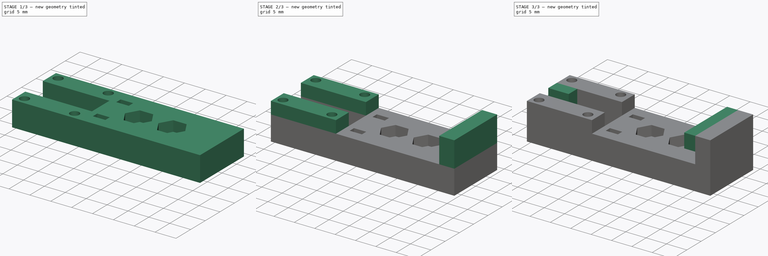
[diagram: build sequence overview — one tinted view per stage of 3, left to right]
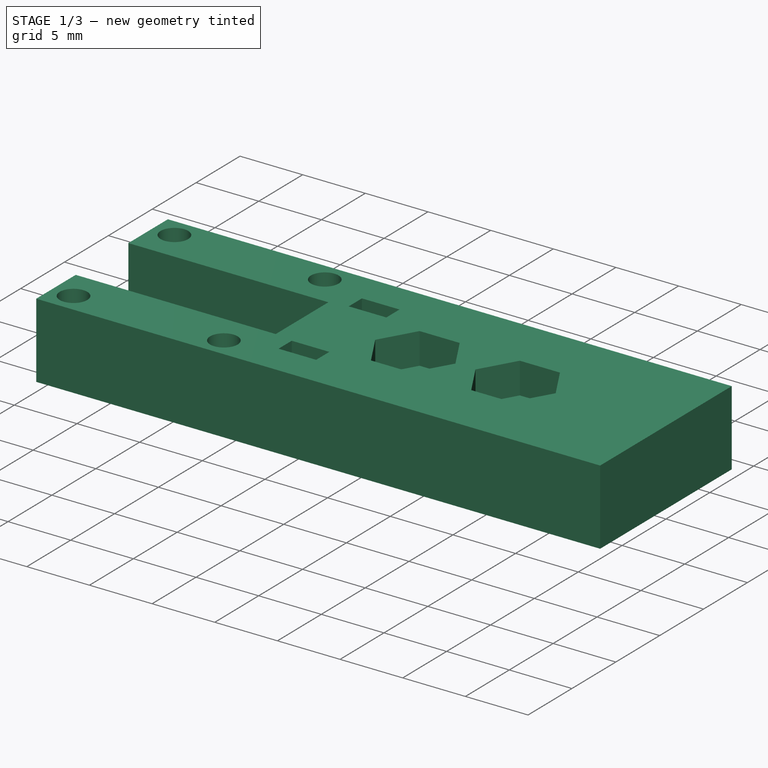
[diagram: stage 1 of 3 — iso view after this stage's code; geometry added in this stage tinted green]
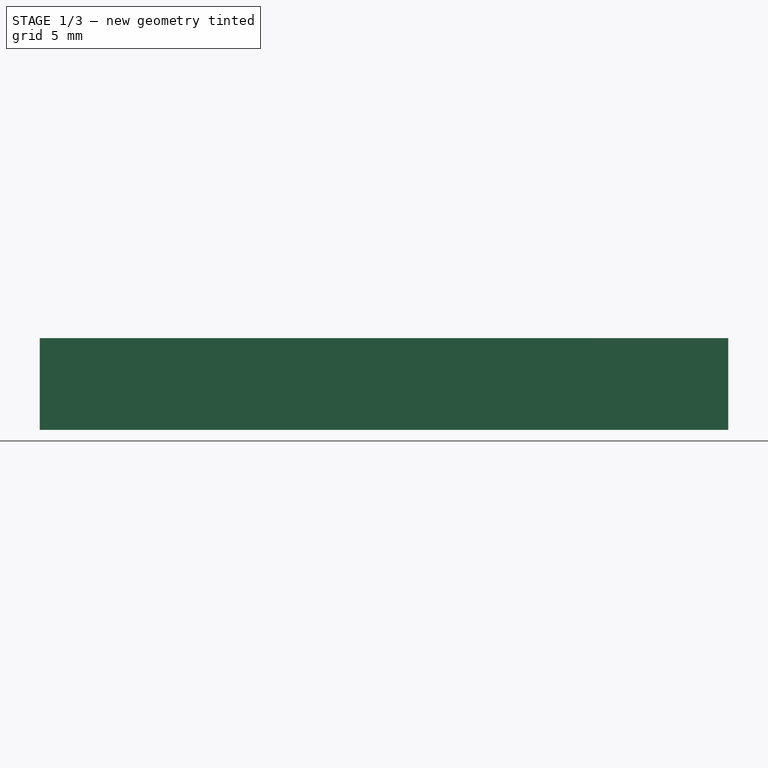
[diagram: stage 1 of 3 — front view after this stage's code; geometry added in this stage tinted green]
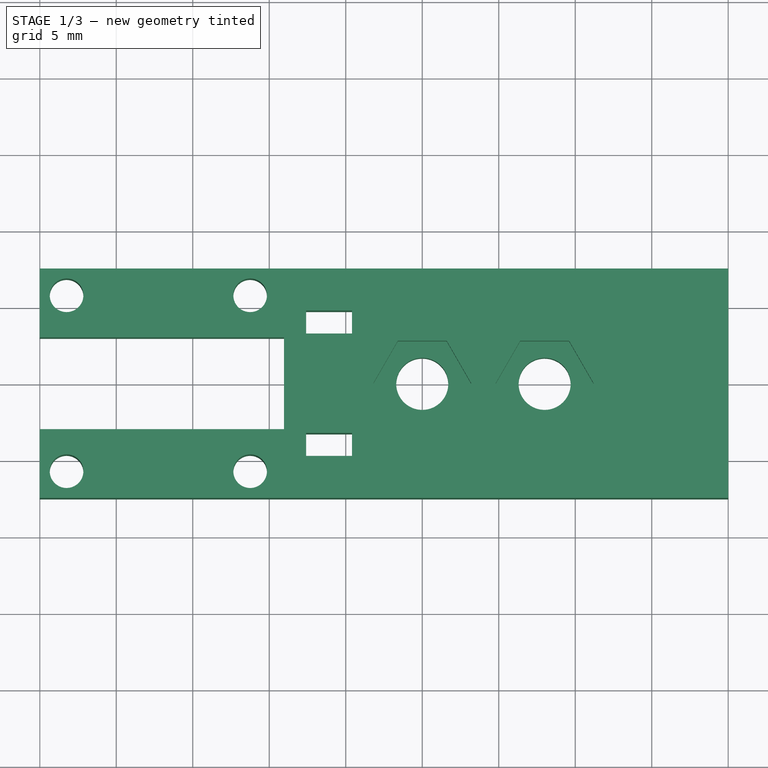
[diagram: stage 1 of 3 — top view after this stage's code; geometry added in this stage tinted green]
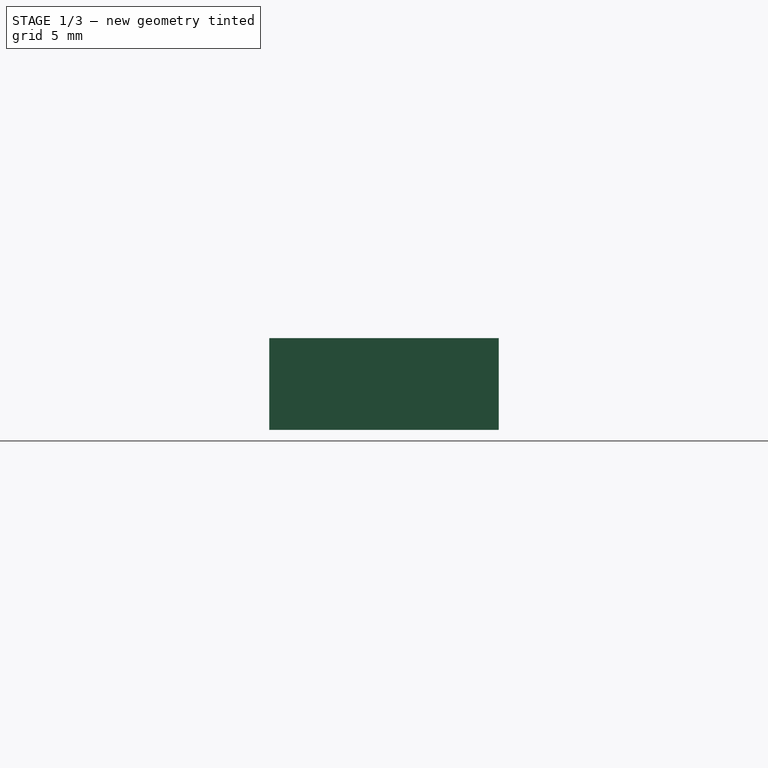
[diagram: stage 1 of 3 — right view after this stage's code; geometry added in this stage tinted green]
FCSTD DOCUMENT  (FreeCAD 0.18.4R)
Label: support_pcb_down_for_chain
License: All rights reserved
LicenseURL: http://en.wikipedia.org/wiki/All_rights_reserved
objects: Sketcher::SketchObject×6, PartDesign::Pad×5, PartDesign::Pocket×1, PartDesign::Body×1
note: 19 computed .brp shape members not serialized (recipe doc carries the construction recipe); baked Part::Feature solids carry a one-line shape summary decoded from their .brp

FEATURE [Sketcher::SketchObject] Sketch
  MapMode = 5
  Support = -> [XY_Plane]
  sketch-geometry (22):
    g0: LineSegment StartX=-20 StartY=7.5 StartZ=0 EndX=25 EndY=7.5 EndZ=0
    g1: LineSegment StartX=25 StartY=7.5 StartZ=0 EndX=25 EndY=-7.5 EndZ=0
    g2: LineSegment StartX=25 StartY=-7.5 StartZ=0 EndX=-20 EndY=-7.5 EndZ=0
    g3: Circle CenterX=5 CenterY=0 CenterZ=0 NormalX=0 NormalY=0 NormalZ=1 AngleXU=0 Radius=1.7
    g4: Circle CenterX=13 CenterY=0 CenterZ=0 NormalX=0 NormalY=0 NormalZ=1 AngleXU=0 Radius=1.7
    g5: LineSegment StartX=-20 StartY=7.5 StartZ=0 EndX=-20 EndY=3 EndZ=0
    g6: LineSegment StartX=-20 StartY=3 StartZ=0 EndX=-4.04 EndY=3 EndZ=0
    g7: LineSegment StartX=-4.04 StartY=3 StartZ=0 EndX=-4.04 EndY=-3 EndZ=0
    g8: LineSegment StartX=-4.04 StartY=-3 StartZ=0 EndX=-20 EndY=-3 EndZ=0
    g9: LineSegment StartX=-20 StartY=-3 StartZ=0 EndX=-20 EndY=-7.5 EndZ=0
    g10: LineSegment StartX=-2.58783 StartY=3.25 StartZ=0 EndX=0.412167 EndY=3.25 EndZ=0
    g11: LineSegment StartX=0.412167 StartY=3.25 StartZ=0 EndX=0.412167 EndY=4.75 EndZ=0
    g12: LineSegment StartX=0.412167 StartY=4.75 StartZ=0 EndX=-2.58783 EndY=4.75 EndZ=0
    g13: LineSegment StartX=-2.58783 StartY=4.75 StartZ=0 EndX=-2.58783 EndY=3.25 EndZ=0
    g14: LineSegment StartX=-2.58783 StartY=-3.25 StartZ=0 EndX=0.412167 EndY=-3.25 EndZ=0
    g15: LineSegment StartX=0.412167 StartY=-3.25 StartZ=0 EndX=0.412167 EndY=-4.75 EndZ=0
    g16: LineSegment StartX=0.412167 StartY=-4.75 StartZ=0 EndX=-2.58783 EndY=-4.75 EndZ=0
    g17: LineSegment StartX=-2.58783 StartY=-4.75 StartZ=0 EndX=-2.58783 EndY=-3.25 EndZ=0
    g18: Circle CenterX=-18.25 CenterY=5.75 CenterZ=0 NormalX=0 NormalY=0 NormalZ=1 AngleXU=0 Radius=1.1
    g19: Circle CenterX=-6.25 CenterY=5.75 CenterZ=0 NormalX=0 NormalY=0 NormalZ=1 AngleXU=0 Radius=1.1
    g20: Circle CenterX=-18.25 CenterY=-5.75 CenterZ=0 NormalX=0 NormalY=0 NormalZ=1 AngleXU=0 Radius=1.1
    g21: Circle CenterX=-6.25 CenterY=-5.75 CenterZ=0 NormalX=0 NormalY=0 NormalZ=1 AngleXU=0 Radius=1.1
  constraints (61):
    c: Coincident(g0,g1)
    c: Coincident(g1,g2)
    c: Horizontal(g0)
    c: Horizontal(g2)
    c: Vertical(g1)
    c: Symmetric(g0,g2,g-1)
    c: DistanceX(g-2,g0) = 25
    c: DistanceX(g-2,g0) = -20
    c: Horizontal(g3,g4)
    c: DistanceX(g-2,g3) = 5
    c: PointOnObject(g3,g-1)
    c: Distance(g3,g4) = 8
    c: Radius(g3) = 1.7
    c: Radius(g4) = 1.7
    c: Coincident(g0,g5)
    c: Vertical(g5)
    c: Coincident(g5,g6)
    c: Horizontal(g6)
    c: Coincident(g6,g7)
    c: Vertical(g7)
    c: Coincident(g7,g8)
    c: Horizontal(g8)
    c: Coincident(g8,g9)
    c: Coincident(g9,g2)
    c: Symmetric(g5,g8,g-1)
    c: DistanceY(g7,g7) = 6
    c: DistanceY(g1,g1) = 15
    c: Coincident(g10,g11)
    c: Coincident(g11,g12)
    c: Coincident(g12,g13)
    c: Coincident(g13,g10)
    c: Horizontal(g10)
    c: Horizontal(g12)
    c: Vertical(g11)
    c: Vertical(g13)
    c: Coincident(g14,g15)
    c: Coincident(g15,g16)
    c: Coincident(g16,g17)
    c: Coincident(g17,g14)
    c: Horizontal(g14)
    c: Horizontal(g16)
    c: Vertical(g15)
    c: Vertical(g17)
    c: Distance(g10,g15) = 8
    c: Vertical(g14,g10)
    c: Symmetric(g10,g14,g-1)
    c: DistanceY(g13,g13) = 1.5
    c: DistanceY(g17,g17) = 1.5
    c: DistanceX(g12,g12) = 3
    c: Horizontal(g21,g20)
    c: Horizontal(g18,g19)
    c: Vertical(g19,g21)
    c: Radius(g18) = 1.1
    c: Radius(g19) = 1.1
    c: Radius(g21) = 1.1
    c: Radius(g20) = 1.1
    c: Symmetric(g18,g20,g-1)
    c: Distance(g18,g0) = 1.75
    c: Distance(g18,g5) = 1.75
    c: Distance(g18,g19) = 12
    c: Distance(g8) = 15.96
FEATURE [PartDesign::Pad] Pad
  Length = 6
  Length2 = 100
  Profile = -> Sketch
  Type = 0
FEATURE [Sketcher::SketchObject] Sketch001
  ExternalGeometry = -> [Pad]
  MapMode = 5
  Placement = pos=(0,0,6) rot=(0,0,1;0rad)
  Support = -> [Pad]
  sketch-geometry (14):
    g0: LineSegment StartX=6.6 StartY=-2.77128 StartZ=0 EndX=8.2 EndY=-4e-16 EndZ=0
    g1: LineSegment StartX=8.2 StartY=-4e-16 StartZ=0 EndX=6.6 EndY=2.77128 EndZ=0
    g2: LineSegment StartX=6.6 StartY=2.77128 StartZ=0 EndX=3.4 EndY=2.77128 EndZ=0
    g3: LineSegment StartX=3.4 StartY=2.77128 StartZ=0 EndX=1.8 EndY=0 EndZ=0
    g4: LineSegment StartX=1.8 StartY=0 StartZ=0 EndX=3.4 EndY=-2.77128 EndZ=0
    g5: LineSegment StartX=3.4 StartY=-2.77128 StartZ=0 EndX=6.6 EndY=-2.77128 EndZ=0
    g6: Circle [constr] CenterX=5 CenterY=0 CenterZ=0 NormalX=0 NormalY=0 NormalZ=1 AngleXU=0 Radius=3.2
    g7: LineSegment StartX=14.6 StartY=-2.77128 StartZ=0 EndX=16.2 EndY=-4e-16 EndZ=0
    g8: LineSegment StartX=16.2 StartY=-4e-16 StartZ=0 EndX=14.6 EndY=2.77128 EndZ=0
    g9: LineSegment StartX=14.6 StartY=2.77128 StartZ=0 EndX=11.4 EndY=2.77128 EndZ=0
    g10: LineSegment StartX=11.4 StartY=2.77128 StartZ=0 EndX=9.8 EndY=0 EndZ=0
    g11: LineSegment StartX=9.8 StartY=0 StartZ=0 EndX=11.4 EndY=-2.77128 EndZ=0
    g12: LineSegment StartX=11.4 StartY=-2.77128 StartZ=0 EndX=14.6 EndY=-2.77128 EndZ=0
    g13: Circle [constr] CenterX=13 CenterY=0 CenterZ=0 NormalX=0 NormalY=0 NormalZ=1 AngleXU=0 Radius=3.2
  constraints (32):
    c: Coincident(g0,g1)
    c: Coincident(g1,g2)
    c: Coincident(g2,g3)
    c: Coincident(g3,g4)
    c: Coincident(g4,g5)
    c: Coincident(g5,g0)
    c: Equal(g0, g1-g5) x5
    c: PointOnObject(g0,g6)
    c: PointOnObject(g1,g6)
    c: PointOnObject(g2,g6)
    c: PointOnObject(g3,g6)
    c: PointOnObject(g4,g6)
    c: PointOnObject(g5,g6)
    c: Coincident(g6,g-3)
    c: Coincident(g7,g8)
    c: Coincident(g8,g9)
    c: Coincident(g9,g10)
    c: Coincident(g10,g11)
    c: Coincident(g11,g12)
    c: Coincident(g12,g7)
    c: Equal(g7, g8-g12) x5
    c: PointOnObject(g7,g13)
    c: PointOnObject(g8,g13)
    c: PointOnObject(g9,g13)
    c: PointOnObject(g10,g13)
    c: PointOnObject(g11,g13)
    c: PointOnObject(g12,g13)
    c: Coincident(g13,g-4)
    c: Radius(g13) = 3.2
    c: Radius(g6) = 3.2
    c: PointOnObject(g3,g-1)
    c: PointOnObject(g10,g-1)
FEATURE [PartDesign::Pocket] Pocket
  BaseFeature = -> Pad
  Length = 2.5
  Length2 = 100
  Profile = -> Sketch001
  Type = 0
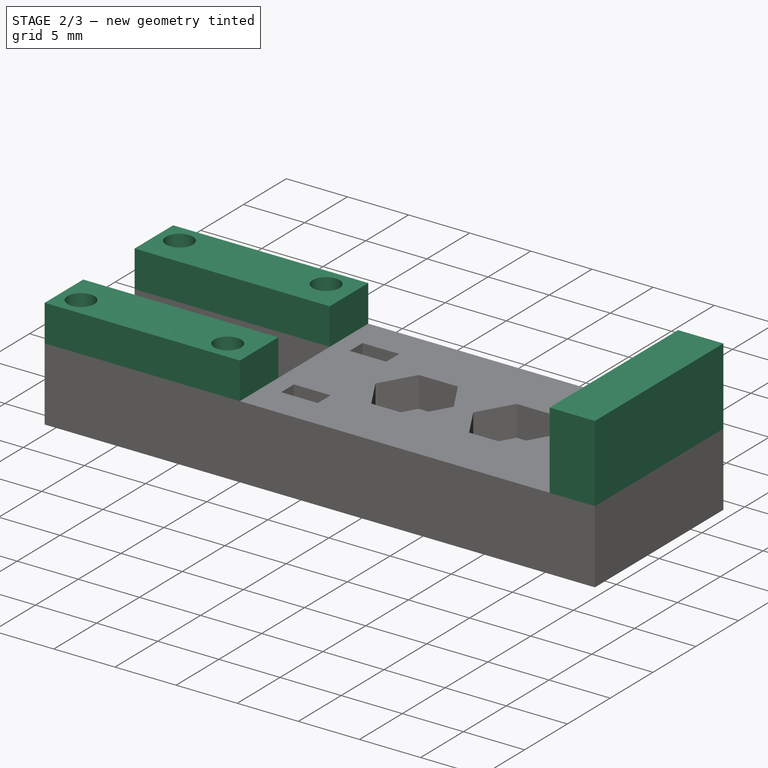
[diagram: stage 2 of 3 — iso view after this stage's code; geometry added in this stage tinted green]
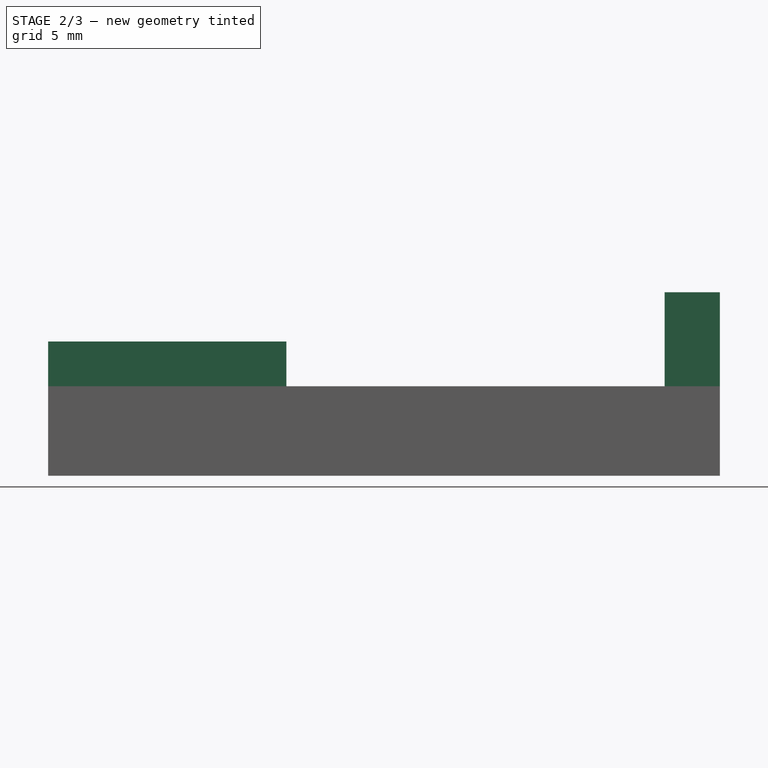
[diagram: stage 2 of 3 — front view after this stage's code; geometry added in this stage tinted green]
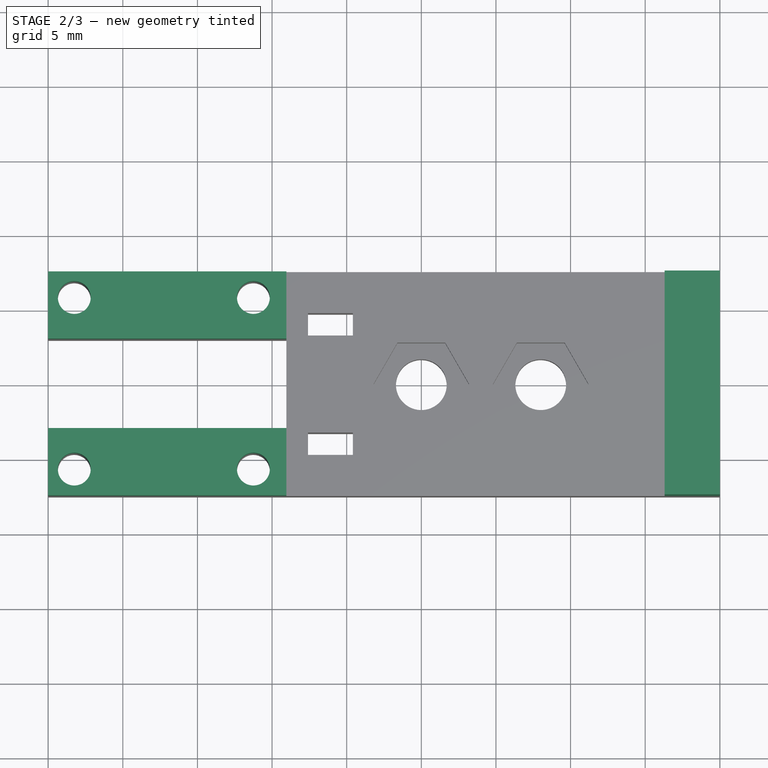
[diagram: stage 2 of 3 — top view after this stage's code; geometry added in this stage tinted green]
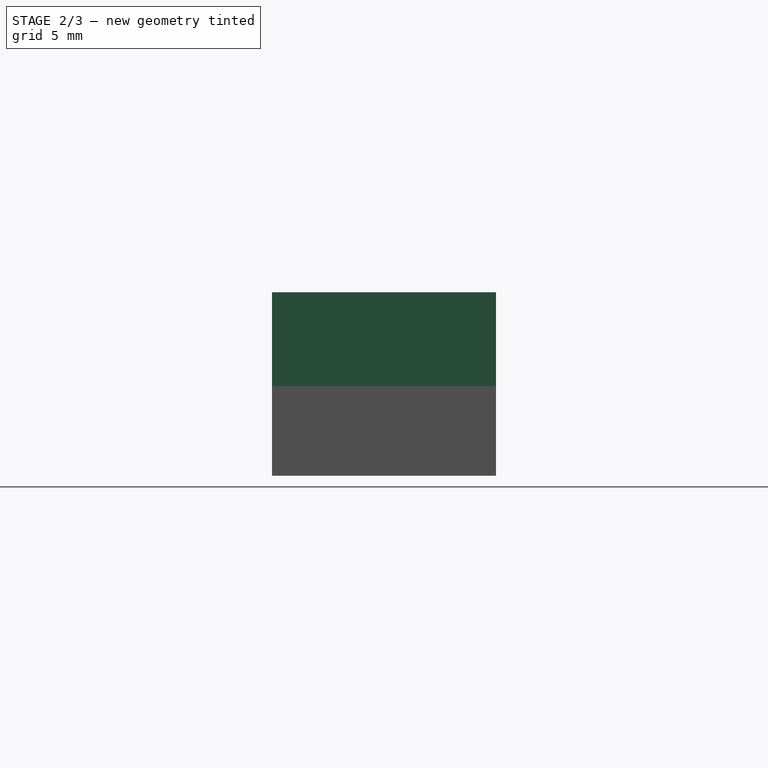
[diagram: stage 2 of 3 — right view after this stage's code; geometry added in this stage tinted green]
FEATURE [Sketcher::SketchObject] Sketch002
  ExternalGeometry = -> [Pocket]
  MapMode = 5
  Placement = pos=(0,0,6) rot=(0,0,1;0rad)
  Support = -> [Pocket]
  sketch-geometry (12):
    g0: LineSegment StartX=-20 StartY=7.5 StartZ=0 EndX=-4.04 EndY=7.5 EndZ=0
    g1: LineSegment StartX=-4.04 StartY=7.5 StartZ=0 EndX=-4.04 EndY=3 EndZ=0
    g2: LineSegment StartX=-4.04 StartY=3 StartZ=0 EndX=-20 EndY=3 EndZ=0
    g3: LineSegment StartX=-20 StartY=3 StartZ=0 EndX=-20 EndY=7.5 EndZ=0
    g4: LineSegment StartX=-20 StartY=-7.5 StartZ=0 EndX=-4.04 EndY=-7.5 EndZ=0
    g5: LineSegment StartX=-4.04 StartY=-7.5 StartZ=0 EndX=-4.04 EndY=-3 EndZ=0
    g6: LineSegment StartX=-4.04 StartY=-3 StartZ=0 EndX=-20 EndY=-3 EndZ=0
    g7: LineSegment StartX=-20 StartY=-3 StartZ=0 EndX=-20 EndY=-7.5 EndZ=0
    g8: Circle CenterX=-18.25 CenterY=5.75 CenterZ=0 NormalX=0 NormalY=0 NormalZ=1 AngleXU=0 Radius=1.1
    g9: Circle CenterX=-6.25 CenterY=5.75 CenterZ=0 NormalX=0 NormalY=0 NormalZ=1 AngleXU=0 Radius=1.1
    g10: Circle CenterX=-18.25 CenterY=-5.75 CenterZ=0 NormalX=0 NormalY=0 NormalZ=1 AngleXU=0 Radius=1.1
    g11: Circle CenterX=-6.25 CenterY=-5.75 CenterZ=0 NormalX=0 NormalY=0 NormalZ=1 AngleXU=0 Radius=1.1
  constraints (29):
    c: Coincident(g0,g1)
    c: Coincident(g1,g2)
    c: Coincident(g2,g3)
    c: Coincident(g3,g0)
    c: Horizontal(g0)
    c: Horizontal(g2)
    c: Vertical(g1)
    c: Vertical(g3)
    c: Coincident(g0,g-5)
    c: Coincident(g1,g-6)
    c: Coincident(g4,g5)
    c: Coincident(g5,g6)
    c: Coincident(g6,g7)
    c: Coincident(g7,g4)
    c: Horizontal(g4)
    c: Horizontal(g6)
    c: Vertical(g5)
    c: Vertical(g7)
    c: Coincident(g4,g-9)
    c: Coincident(g5,g-7)
    c: Coincident(g8,g-13)
    c: Radius(g-13) = 1.1
    c: Radius(g-13) = 1.1
    c: Radius(g8) = 1.1
    c: Coincident(g9,g-12)
    c: Coincident(g10,g-10)
    c: Coincident(g11,g-11)
    c: Radius(g-11) = 1.1
    c: Radius(g11) = 1.1
FEATURE [PartDesign::Pad] Pad001
  BaseFeature = -> Pocket
  Length = 3
  Length2 = 100
  Profile = -> Sketch002
  Type = 0
FEATURE [Sketcher::SketchObject] Sketch003
  ExternalGeometry = -> [Pad001]
  MapMode = 5
  Placement = pos=(0,0,6) rot=(0,0,1;0rad)
  Support = -> [Pad001]
  sketch-geometry (4):
    g0: LineSegment StartX=25 StartY=-7.5 StartZ=0 EndX=21.3 EndY=-7.5 EndZ=0
    g1: LineSegment StartX=21.3 StartY=-7.5 StartZ=0 EndX=21.3 EndY=7.5 EndZ=0
    g2: LineSegment StartX=21.3 StartY=7.5 StartZ=0 EndX=25 EndY=7.5 EndZ=0
    g3: LineSegment StartX=25 StartY=7.5 StartZ=0 EndX=25 EndY=-7.5 EndZ=0
  constraints (11):
    c: Coincident(g0,g1)
    c: Coincident(g1,g2)
    c: Coincident(g2,g3)
    c: Coincident(g3,g0)
    c: Horizontal(g0)
    c: Horizontal(g2)
    c: Vertical(g1)
    c: Vertical(g3)
    c: Coincident(g0,g-5)
    c: PointOnObject(g1,g-3)
    c: DistanceX(g2,g2) = 3.7
FEATURE [PartDesign::Pad] Pad002
  BaseFeature = -> Pad001
  Length = 6.3
  Length2 = 100
  Profile = -> Sketch003
  Type = 0
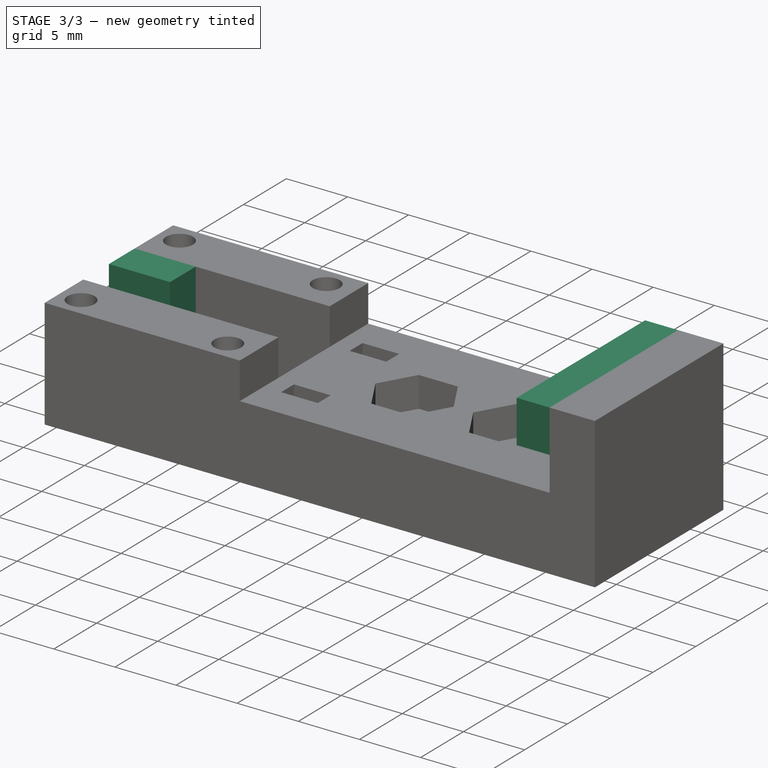
[diagram: stage 3 of 3 — iso view after this stage's code; geometry added in this stage tinted green]
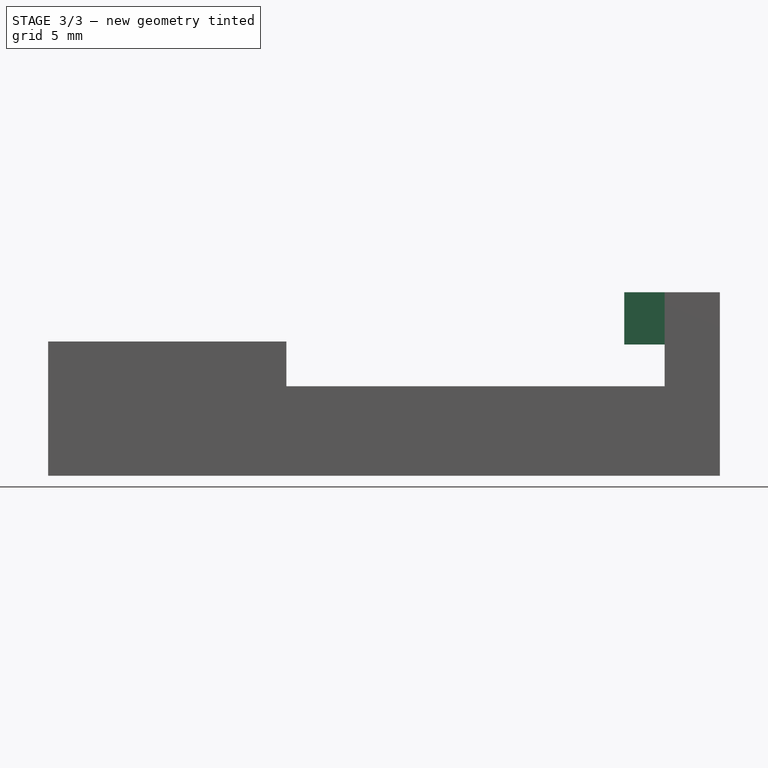
[diagram: stage 3 of 3 — front view after this stage's code; geometry added in this stage tinted green]
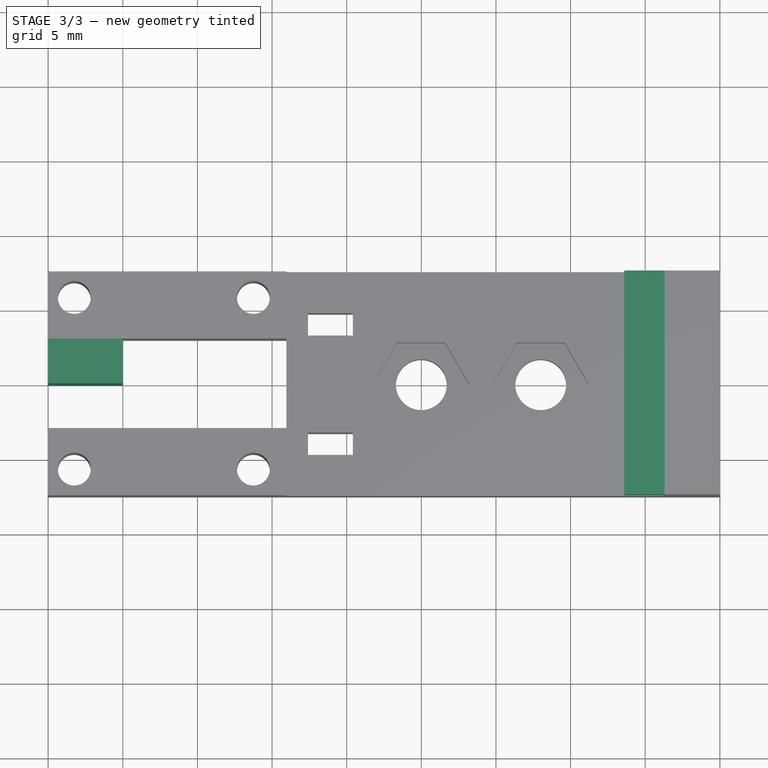
[diagram: stage 3 of 3 — top view after this stage's code; geometry added in this stage tinted green]
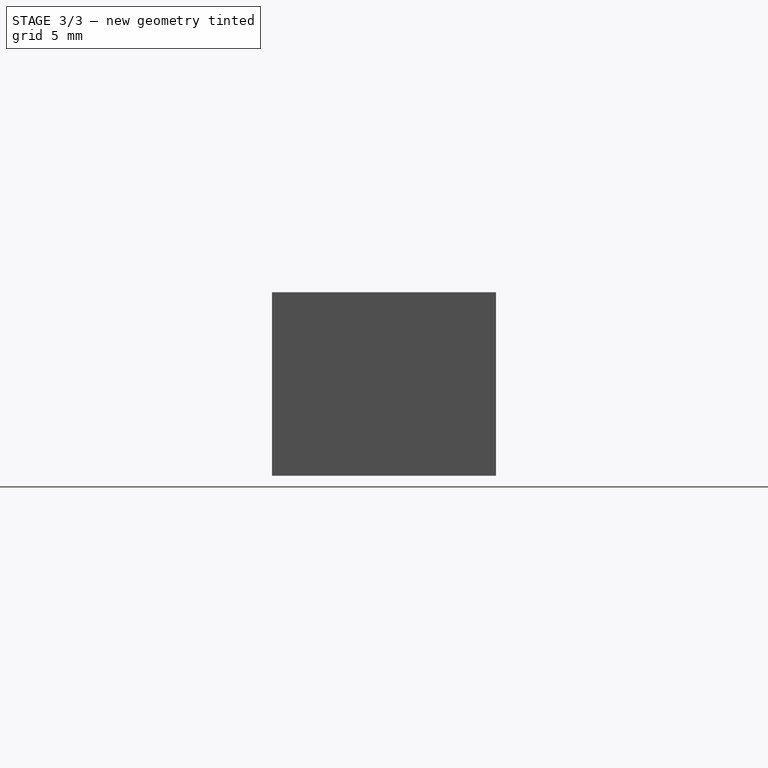
[diagram: stage 3 of 3 — right view after this stage's code; geometry added in this stage tinted green]
FEATURE [Sketcher::SketchObject] Sketch004
  ExternalGeometry = -> [Pad002]
  MapMode = 5
  Placement = pos=(21.3,0,0) rot=(0.57735,-0.57735,-0.57735;2.0944rad)
  Support = -> [Pad002]
  sketch-geometry (4):
    g0: LineSegment StartX=-7.5 StartY=12.3 StartZ=0 EndX=7.5 EndY=12.3 EndZ=0
    g1: LineSegment StartX=7.5 StartY=12.3 StartZ=0 EndX=7.5 EndY=8.8 EndZ=0
    g2: LineSegment StartX=7.5 StartY=8.8 StartZ=0 EndX=-7.5 EndY=8.8 EndZ=0
    g3: LineSegment StartX=-7.5 StartY=8.8 StartZ=0 EndX=-7.5 EndY=12.3 EndZ=0
  constraints (11):
    c: Coincident(g0,g1)
    c: Coincident(g1,g2)
    c: Coincident(g2,g3)
    c: Coincident(g3,g0)
    c: Horizontal(g0)
    c: Horizontal(g2)
    c: Vertical(g1)
    c: Vertical(g3)
    c: Coincident(g0,g-4)
    c: PointOnObject(g1,g-5)
    c: DistanceY(g3,g3) = 3.5
FEATURE [PartDesign::Pad] Pad003
  BaseFeature = -> Pad002
  Length = 2.7
  Length2 = 100
  Profile = -> Sketch004
  Type = 0
FEATURE [Sketcher::SketchObject] Sketch005
  ExternalGeometry = -> [Pad003]
  MapMode = 5
  Placement = pos=(0,3,0) rot=(1,0,0;1.5708rad)
  Support = -> [Pad003]
  sketch-geometry (4):
    g0: LineSegment StartX=-20 StartY=9 StartZ=0 EndX=-15 EndY=9 EndZ=0
    g1: LineSegment StartX=-15 StartY=9 StartZ=0 EndX=-15 EndY=0 EndZ=0
    g2: LineSegment StartX=-15 StartY=0 StartZ=0 EndX=-20 EndY=0 EndZ=0
    g3: LineSegment StartX=-20 StartY=0 StartZ=0 EndX=-20 EndY=9 EndZ=0
  constraints (11):
    c: Coincident(g0,g1)
    c: Coincident(g1,g2)
    c: Coincident(g2,g3)
    c: Coincident(g3,g0)
    c: Horizontal(g0)
    c: Horizontal(g2)
    c: Vertical(g1)
    c: Vertical(g3)
    c: Coincident(g0,g-6)
    c: PointOnObject(g1,g-3)
    c: DistanceX(g0,g0) = 5
FEATURE [PartDesign::Pad] Pad004
  BaseFeature = -> Pad003
  Length = 3
  Length2 = 100
  Profile = -> Sketch005
  Type = 0
FEATURE [PartDesign::Body] Body
  Group = -> [Sketch,Pad,Sketch001,Pocket,Sketch002,Pad001,Sketch003,Pad002,Sketch004,Pad003,Sketch005,Pad004]
  Origin = -> Origin
  Tip = -> Pad004
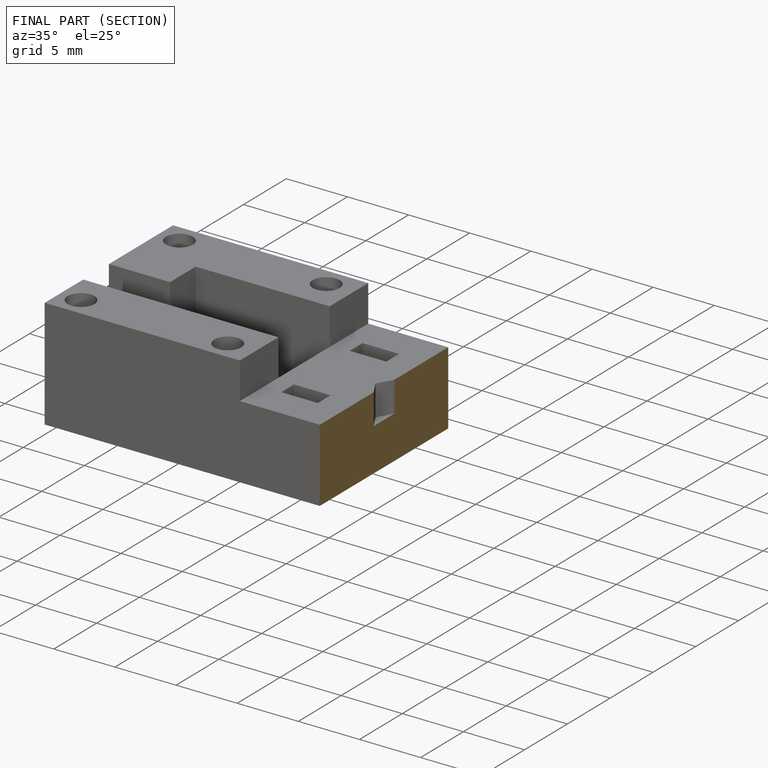
[diagram: finished part — half-section view (interior)]
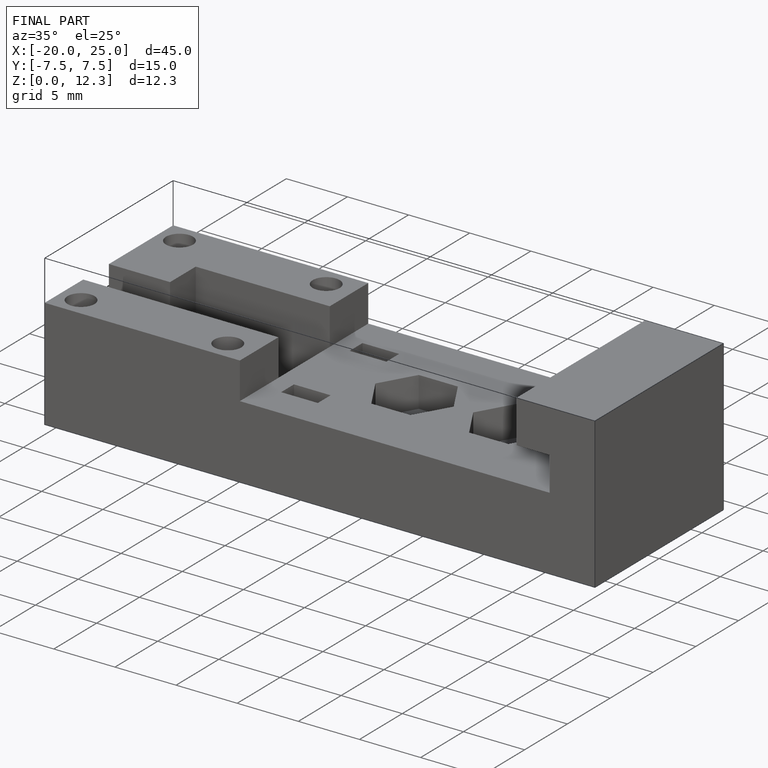
[diagram: finished part — iso view with bounding-box wireframe]
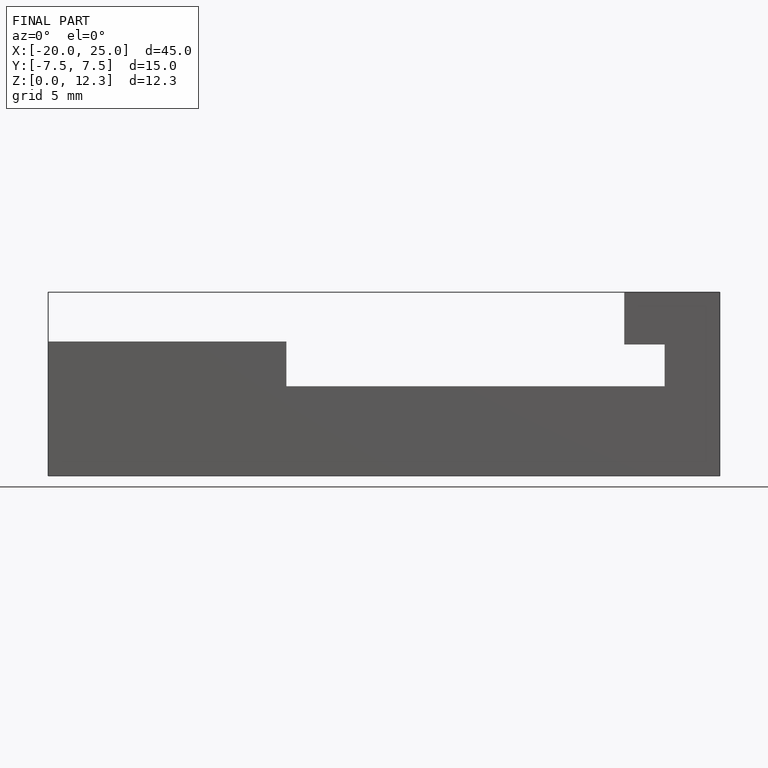
[diagram: finished part — front view with bounding-box wireframe]
